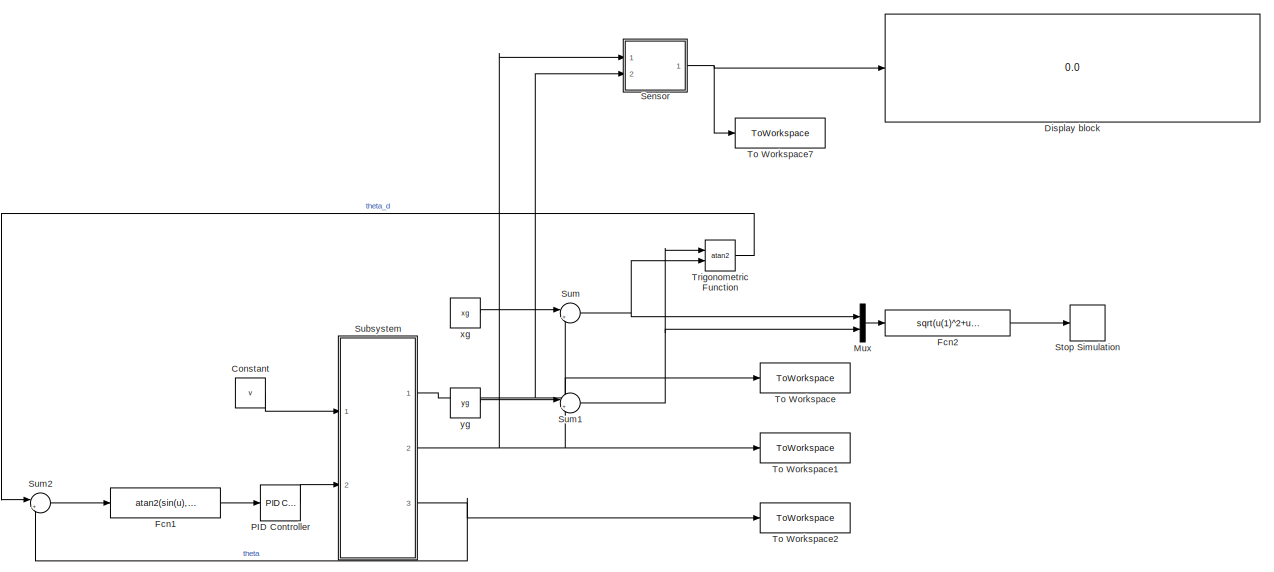
[diagram: root canvas - part 1/2, top center region]
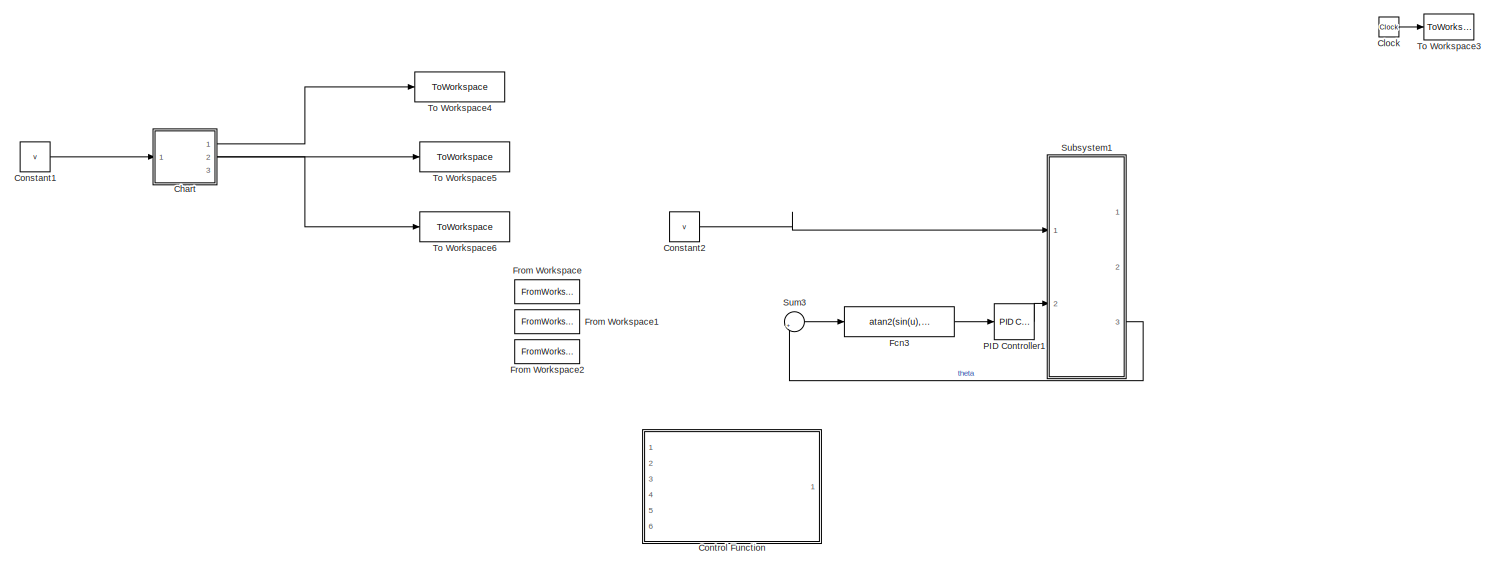
[diagram: root canvas - part 2/2, full width, bottom band]
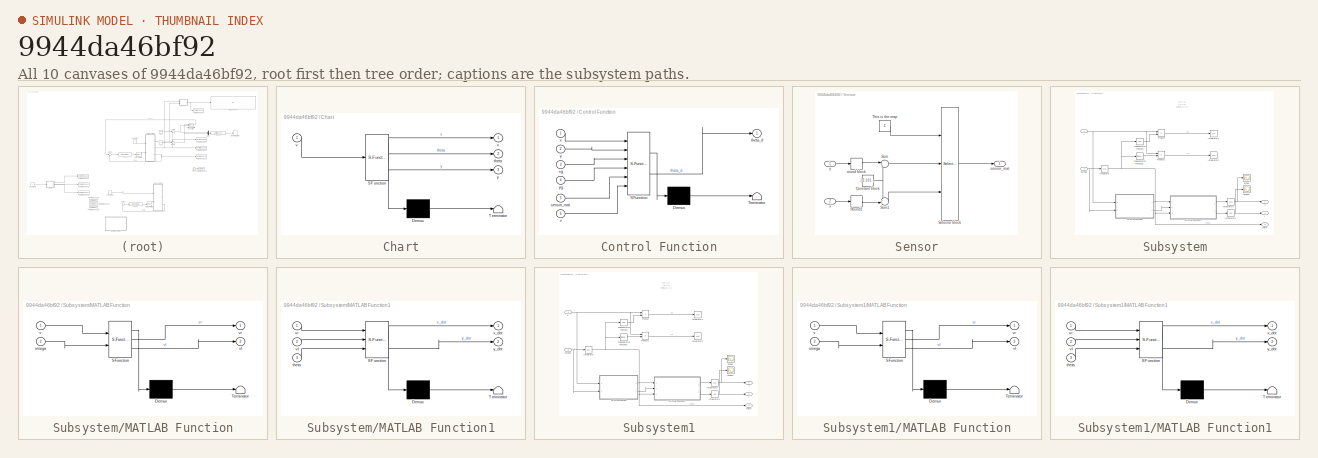
[diagram: thumbnail index - all 10 canvases of the model, root first then tree order]
MODEL slx_9944da46bf92
KIND model
CONFIG AbsTol = auto
CONFIG EnableMultiTasking = off
CONFIG FixedStep = auto
CONFIG MaxStep = auto
CONFIG MinStep = auto
CONFIG RelTol = 1e-3
CONFIG SampleTimeConstraint = Unconstrained
CONFIG SolverName = VariableStepAuto
CONFIG StartTime = 0.0
CONFIG StopTime = 10.0
BLOCK [SubSystem] Chart
  Commented = on
  ErrorFcn = Stateflow.Translate.translate
  PermitHierarchicalResolution = ExplicitOnly
  PortSchema = {"entries":[{"content":{"sides":[{"content":{"connectorIds":["In1"]},"type":"ConnectorPlacement.EquallySpacedRectSide","uuid":"6b970acd-0e57-48c6-b6e7-bbe5ce4c4b2d"},{"content":{"connectorIds":["Out1","Out3","Out2"],"side":"RIGHT"},"type":"ConnectorPlacement.EquallySpacedRectSide","uuid":"a94f6154-f886-4909-b274-137e45e3c008"},{"content":{"connectorIds":[],"side":"TOP"},"type":"ConnectorPlacement....<+254ch>
  Ports = [1, 3]
  RequestExecContextInheritance = off
  SFBlockType = Chart
  TreatAsAtomicUnit = on
BLOCK [Demux] Chart/ Demux 
  Outputs = 1
  Ports = [1, 1]
BLOCK [S-Function] Chart/ SFunction 
  EnableBusSupport = on
  FunctionName = sf_sfun
  PortCounts = [1 4]
  Ports = [1, 4]
  SFcnIsStateOwnerBlock = off
  SFunctionDeploymentMode = off
  Tag = Stateflow S-Function 3
BLOCK [Terminator] Chart/ Terminator 
BLOCK [Outport] Chart/theta
  Port = 2
BLOCK [Inport] Chart/v
BLOCK [Outport] Chart/x
BLOCK [Outport] Chart/y
  Port = 3
BLOCK [Clock] Clock
BLOCK [Constant] Constant
  Value = v
BLOCK [Constant] Constant1
  Commented = on
  Value = v
BLOCK [Constant] Constant2
  Value = v
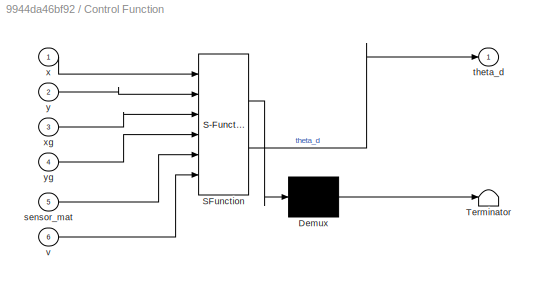
BLOCK [SubSystem] Control Function
  ErrorFcn = Stateflow.Translate.translate
  PermitHierarchicalResolution = ExplicitOnly
  Ports = [6, 1]
  RequestExecContextInheritance = off
  SFBlockType = MATLAB Function
  TreatAsAtomicUnit = on
BLOCK [Demux] Control Function/ Demux 
  Outputs = 1
  Ports = [1, 1]
BLOCK [S-Function] Control Function/ SFunction 
  EnableBusSupport = off
  FunctionName = sf_sfun
  PortCounts = [6 2]
  Ports = [6, 2]
  SFcnIsStateOwnerBlock = off
  SFunctionDeploymentMode = off
  Tag = Stateflow S-Function 6
BLOCK [Terminator] Control Function/ Terminator 
BLOCK [Inport] Control Function/sensor_mat
  Port = 5
BLOCK [Outport] Control Function/theta_d
BLOCK [Inport] Control Function/v
  Port = 6
BLOCK [Inport] Control Function/x
BLOCK [Inport] Control Function/xg
  Port = 3
BLOCK [Inport] Control Function/y
  Port = 2
BLOCK [Inport] Control Function/yg
  Port = 4
BLOCK [Display] Display block
  Decimation = 1
  Ports = [1]
BLOCK [Fcn] Fcn1
  Expr = atan2(sin(u),cos(u))
BLOCK [Fcn] Fcn2
  Expr = sqrt(u(1)^2+u(2)^2)<tol
BLOCK [Fcn] Fcn3
  Expr = atan2(sin(u),cos(u))
BLOCK [FromWorkspace] From Workspace
  VariableName = out.xpos
BLOCK [FromWorkspace] From Workspace1
  VariableName = out.ypos
BLOCK [FromWorkspace] From Workspace2
  VariableName = out.sensor_mat
BLOCK [Mux] Mux
  DisplayOption = bar
  Inputs = 2
  Ports = [2, 1]
BLOCK [Reference] PID Controller  REF=pid_lib/PID Controller
  Ports = [1, 1]
  SourceBlock = pid_lib/PID Controller
  SourceProductBaseCode = SL
  SourceType = PID 1dof
BLOCK [Reference] PID Controller1  REF=pid_lib/PID Controller
  Ports = [1, 1]
  SourceBlock = pid_lib/PID Controller
  SourceProductBaseCode = SL
  SourceType = PID 1dof
BLOCK [SubSystem] Sensor
  Ports = [2, 1]
  RequestExecContextInheritance = off
BLOCK [Constant] Sensor/Constant block
  Value = [-2 -1 0 1 2]
BLOCK [Rounding] Sensor/Round1
  Operator = round
BLOCK [Selector] Sensor/Selector block
  IndexOptions = Index vector (port),Index vector (port)
  Indices = [1 3],1
  InputPortWidth = 3
  NumberOfDimensions = 2
  OutputSizes = 1,1
  Ports = [3, 1]
BLOCK [Sum] Sensor/Sum
  Inputs = |+-
  OutDataTypeStr = int32
  Ports = [2, 1]
  RndMeth = Round
BLOCK [Sum] Sensor/Sum1
  Inputs = ++|
  OutDataTypeStr = int32
  Ports = [2, 1]
  RndMeth = Round
BLOCK [Constant] Sensor/This is the map
  Value = Z
  VectorParams1D = off
BLOCK [Rounding] Sensor/round block
  Operator = round
BLOCK [Outport] Sensor/sensor_mat
BLOCK [Inport] Sensor/x
  Port = 2
BLOCK [Inport] Sensor/y
BLOCK [Stop] Stop Simulation
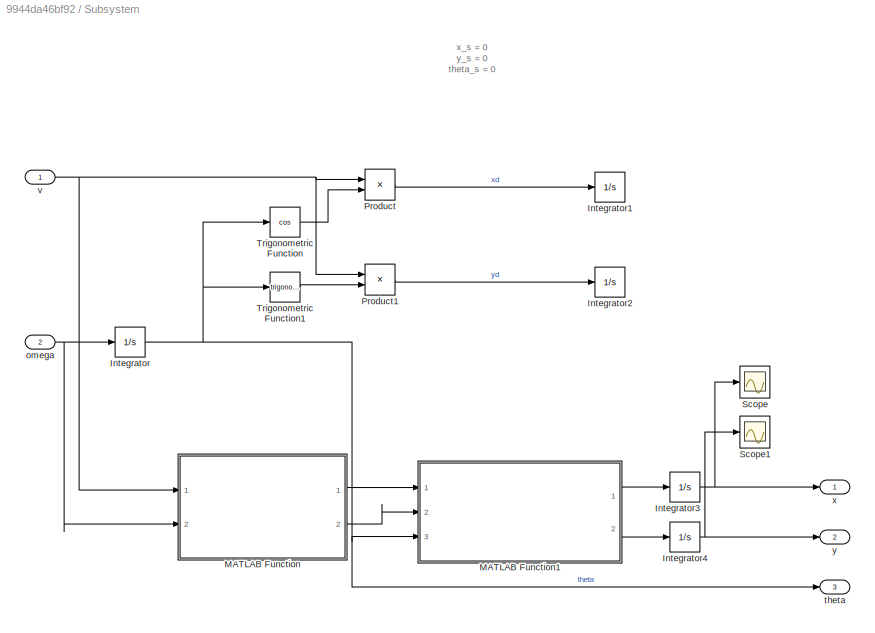
BLOCK [SubSystem] Subsystem
  Ports = [2, 3]
  RequestExecContextInheritance = off
BLOCK [Integrator] Subsystem/Integrator
  InitialCondition = theta0
  Ports = [1, 1]
BLOCK [Integrator] Subsystem/Integrator1
  InitialCondition = x0
  Ports = [1, 1]
BLOCK [Integrator] Subsystem/Integrator2
  InitialCondition = y0
  Ports = [1, 1]
BLOCK [Integrator] Subsystem/Integrator3
  InitialCondition = x0
  Ports = [1, 1]
BLOCK [Integrator] Subsystem/Integrator4
  InitialCondition = y0
  Ports = [1, 1]
BLOCK [SubSystem] Subsystem/MATLAB Function
  ErrorFcn = Stateflow.Translate.translate
  PermitHierarchicalResolution = ExplicitOnly
  Ports = [2, 2]
  RequestExecContextInheritance = off
  SFBlockType = MATLAB Function
  TreatAsAtomicUnit = on
BLOCK [Demux] Subsystem/MATLAB Function/ Demux 
  Outputs = 1
  Ports = [1, 1]
BLOCK [S-Function] Subsystem/MATLAB Function/ SFunction 
  EnableBusSupport = on
  FunctionName = sf_sfun
  PortCounts = [2 3]
  Ports = [2, 3]
  SFcnIsStateOwnerBlock = off
  SFunctionDeploymentMode = off
  Tag = Stateflow S-Function 2
BLOCK [Terminator] Subsystem/MATLAB Function/ Terminator 
BLOCK [Inport] Subsystem/MATLAB Function/omega
  Port = 2
BLOCK [Inport] Subsystem/MATLAB Function/v
BLOCK [Outport] Subsystem/MATLAB Function/vl
  Port = 2
BLOCK [Outport] Subsystem/MATLAB Function/vr
BLOCK [SubSystem] Subsystem/MATLAB Function1
  ErrorFcn = Stateflow.Translate.translate
  PermitHierarchicalResolution = ExplicitOnly
  Ports = [3, 2]
  RequestExecContextInheritance = off
  SFBlockType = MATLAB Function
  TreatAsAtomicUnit = on
BLOCK [Demux] Subsystem/MATLAB Function1/ Demux 
  Outputs = 1
  Ports = [1, 1]
BLOCK [S-Function] Subsystem/MATLAB Function1/ SFunction 
  EnableBusSupport = on
  FunctionName = sf_sfun
  PortCounts = [3 3]
  Ports = [3, 3]
  SFcnIsStateOwnerBlock = off
  SFunctionDeploymentMode = off
  Tag = Stateflow S-Function 1
BLOCK [Terminator] Subsystem/MATLAB Function1/ Terminator 
BLOCK [Inport] Subsystem/MATLAB Function1/theta
  Port = 3
BLOCK [Inport] Subsystem/MATLAB Function1/vl
  Port = 2
BLOCK [Inport] Subsystem/MATLAB Function1/vr
BLOCK [Outport] Subsystem/MATLAB Function1/x_dot
BLOCK [Outport] Subsystem/MATLAB Function1/y_dot
  Port = 2
BLOCK [Product] Subsystem/Product
  Ports = [2, 1]
BLOCK [Product] Subsystem/Product1
  Ports = [2, 1]
BLOCK [Scope] Subsystem/Scope
  Floating = off
  NumInputPorts = 1
  Ports = [1]
  ScopeSpecificationString = Simulink.scopes.TimeScopeBlockCfg('CurrentConfiguration', extmgr.ConfigurationSet(extmgr.Configuration('Core','General UI',true),extmgr.Configuration('Core','Source UI',true),extmgr.Configuration('Sources','WiredSimulink',true,'DataLoggingVariableName','ScopeData2'),extmgr.Configuration('Visuals','Time Domain',true,'SerializedDisplays',{struct('MinYLimReal','3.82573','MaxYLimReal','15.56847','YLab...<+1372ch>
BLOCK [Scope] Subsystem/Scope1
  Floating = off
  NumInputPorts = 1
  Ports = [1]
  ScopeSpecificationString = Simulink.scopes.TimeScopeBlockCfg('CurrentConfiguration', extmgr.ConfigurationSet(extmgr.Configuration('Core','General UI',true),extmgr.Configuration('Core','Source UI',true),extmgr.Configuration('Sources','WiredSimulink',true,'DataLoggingVariableName','ScopeData3'),extmgr.Configuration('Visuals','Time Domain',true,'SerializedDisplays',{struct('MinYLimReal','10.57265','MaxYLimReal','14.84619','YLa...<+1410ch>
BLOCK [Trigonometry] Subsystem/Trigonometric Function
  Operator = cos
  Ports = [1, 1]
BLOCK [Trigonometry] Subsystem/Trigonometric Function1
  Ports = [1, 1]
BLOCK [Inport] Subsystem/omega
  Port = 2
BLOCK [Outport] Subsystem/theta
  Port = 3
BLOCK [Inport] Subsystem/v
BLOCK [Outport] Subsystem/x
BLOCK [Outport] Subsystem/y
  Port = 2
BLOCK [SubSystem] Subsystem1
  Ports = [2, 3]
  RequestExecContextInheritance = off
BLOCK [Integrator] Subsystem1/Integrator
  InitialCondition = theta0
  Ports = [1, 1]
BLOCK [Integrator] Subsystem1/Integrator1
  InitialCondition = x0
  Ports = [1, 1]
BLOCK [Integrator] Subsystem1/Integrator2
  InitialCondition = y0
  Ports = [1, 1]
BLOCK [Integrator] Subsystem1/Integrator3
  InitialCondition = x0
  Ports = [1, 1]
BLOCK [Integrator] Subsystem1/Integrator4
  InitialCondition = y0
  Ports = [1, 1]
BLOCK [SubSystem] Subsystem1/MATLAB Function
  ErrorFcn = Stateflow.Translate.translate
  PermitHierarchicalResolution = ExplicitOnly
  Ports = [2, 2]
  RequestExecContextInheritance = off
  SFBlockType = MATLAB Function
  TreatAsAtomicUnit = on
BLOCK [Demux] Subsystem1/MATLAB Function/ Demux 
  Outputs = 1
  Ports = [1, 1]
BLOCK [S-Function] Subsystem1/MATLAB Function/ SFunction 
  EnableBusSupport = on
  FunctionName = sf_sfun
  PortCounts = [2 3]
  Ports = [2, 3]
  SFcnIsStateOwnerBlock = off
  SFunctionDeploymentMode = off
  Tag = Stateflow S-Function 4
BLOCK [Terminator] Subsystem1/MATLAB Function/ Terminator 
BLOCK [Inport] Subsystem1/MATLAB Function/omega
  Port = 2
BLOCK [Inport] Subsystem1/MATLAB Function/v
BLOCK [Outport] Subsystem1/MATLAB Function/vl
  Port = 2
BLOCK [Outport] Subsystem1/MATLAB Function/vr
BLOCK [SubSystem] Subsystem1/MATLAB Function1
  ErrorFcn = Stateflow.Translate.translate
  PermitHierarchicalResolution = ExplicitOnly
  Ports = [3, 2]
  RequestExecContextInheritance = off
  SFBlockType = MATLAB Function
  TreatAsAtomicUnit = on
BLOCK [Demux] Subsystem1/MATLAB Function1/ Demux 
  Outputs = 1
  Ports = [1, 1]
BLOCK [S-Function] Subsystem1/MATLAB Function1/ SFunction 
  EnableBusSupport = on
  FunctionName = sf_sfun
  PortCounts = [3 3]
  Ports = [3, 3]
  SFcnIsStateOwnerBlock = off
  SFunctionDeploymentMode = off
  Tag = Stateflow S-Function 5
BLOCK [Terminator] Subsystem1/MATLAB Function1/ Terminator 
BLOCK [Inport] Subsystem1/MATLAB Function1/theta
  Port = 3
BLOCK [Inport] Subsystem1/MATLAB Function1/vl
  Port = 2
BLOCK [Inport] Subsystem1/MATLAB Function1/vr
BLOCK [Outport] Subsystem1/MATLAB Function1/x_dot
BLOCK [Outport] Subsystem1/MATLAB Function1/y_dot
  Port = 2
BLOCK [Product] Subsystem1/Product
  Ports = [2, 1]
BLOCK [Product] Subsystem1/Product1
  Ports = [2, 1]
BLOCK [Scope] Subsystem1/Scope
  Floating = off
  NumInputPorts = 1
  Ports = [1]
  ScopeSpecificationString = Simulink.scopes.TimeScopeBlockCfg('CurrentConfiguration', extmgr.ConfigurationSet(extmgr.Configuration('Core','General UI',true),extmgr.Configuration('Core','Source UI',true),extmgr.Configuration('Sources','WiredSimulink',true,'DataLoggingVariableName','ScopeData2'),extmgr.Configuration('Visuals','Time Domain',true,'SerializedDisplays',{struct('MinYLimReal','2.06604','MaxYLimReal','31.40561','YLab...<+1372ch>
BLOCK [Scope] Subsystem1/Scope1
  Floating = off
  NumInputPorts = 1
  Ports = [1]
  ScopeSpecificationString = Simulink.scopes.TimeScopeBlockCfg('CurrentConfiguration', extmgr.ConfigurationSet(extmgr.Configuration('Core','General UI',true),extmgr.Configuration('Core','Source UI',true),extmgr.Configuration('Sources','WiredSimulink',true,'DataLoggingVariableName','ScopeData3'),extmgr.Configuration('Visuals','Time Domain',true,'SerializedDisplays',{struct('MinYLimReal','9.92523','MaxYLimReal','20.67291','YLab...<+1406ch>
BLOCK [Trigonometry] Subsystem1/Trigonometric Function
  Operator = cos
  Ports = [1, 1]
BLOCK [Trigonometry] Subsystem1/Trigonometric Function1
  Ports = [1, 1]
BLOCK [Inport] Subsystem1/omega
  Port = 2
BLOCK [Outport] Subsystem1/theta
  Port = 3
BLOCK [Inport] Subsystem1/v
BLOCK [Outport] Subsystem1/x
BLOCK [Outport] Subsystem1/y
  Port = 2
BLOCK [Sum] Sum
  Inputs = |+-
  Ports = [2, 1]
BLOCK [Sum] Sum1
  Inputs = |+-
  Ports = [2, 1]
BLOCK [Sum] Sum2
  Inputs = |+-
  Ports = [2, 1]
BLOCK [Sum] Sum3
  Inputs = |+-
  Ports = [2, 1]
BLOCK [ToWorkspace] To Workspace
  FixptAsFi = on
  MaxDataPoints = inf
  Ports = [1]
  SampleTime = -1
  VariableName = xpos
BLOCK [ToWorkspace] To Workspace1
  FixptAsFi = on
  MaxDataPoints = inf
  Ports = [1]
  SampleTime = -1
  VariableName = ypos
BLOCK [ToWorkspace] To Workspace2
  FixptAsFi = on
  MaxDataPoints = inf
  Ports = [1]
  SampleTime = -1
  VariableName = theta
BLOCK [ToWorkspace] To Workspace3
  FixptAsFi = on
  MaxDataPoints = inf
  Ports = [1]
  SampleTime = -1
  Save2DSignal = 2-D array (concatenate along first dimension)
  VariableName = t
BLOCK [ToWorkspace] To Workspace4
  Commented = on
  FixptAsFi = on
  MaxDataPoints = inf
  Ports = [1]
  SampleTime = -1
  VariableName = xpos1
BLOCK [ToWorkspace] To Workspace5
  Commented = on
  FixptAsFi = on
  MaxDataPoints = inf
  Ports = [1]
  SampleTime = -1
  VariableName = ypos1
BLOCK [ToWorkspace] To Workspace6
  Commented = on
  FixptAsFi = on
  MaxDataPoints = inf
  Ports = [1]
  SampleTime = -1
  VariableName = theta1
BLOCK [ToWorkspace] To Workspace7
  FixptAsFi = on
  MaxDataPoints = inf
  Ports = [1]
  SampleTime = -1
  SaveFormat = Timeseries
  VariableName = sensor_mat
BLOCK [Trigonometry] Trigonometric Function
  Operator = atan2
  Ports = [2, 1]
BLOCK [Constant] xg
  Value = xg
BLOCK [Constant] yg
  Value = yg
ANNOTATION Subsystem: x_s = 0 y_s = 0 theta_s = 0
ANNOTATION Subsystem1: x_s = 0 y_s = 0 theta_s = 0
LINE Chart:1 -> To Workspace4:1
LINE Chart:2 -> To Workspace6:1
LINE Chart:3 -> To Workspace5:1
LINE Clock:1 -> To Workspace3:1
LINE Constant1:1 -> Chart:1
LINE Constant2:1 -> Subsystem1:1
LINE Constant:1 -> Subsystem:1
LINE Fcn1:1 -> PID Controller:1
LINE Fcn2:1 -> Stop Simulation:1
LINE Fcn3:1 -> PID Controller1:1
LINE Mux:1 -> Fcn2:1
LINE PID Controller1:1 -> Subsystem1:2
LINE PID Controller:1 -> Subsystem:2
NET Sensor/Constant block:1 -> Sensor/Sum1:1, Sensor/Sum:2
LINE Sensor/Round1:1 -> Sensor/Sum1:2
LINE Sensor/Selector block:1 -> Sensor/sensor_mat:1
LINE Sensor/Sum1:1 -> Sensor/Selector block:3
LINE Sensor/Sum:1 -> Sensor/Selector block:2
LINE Sensor/This is the map:1 -> Sensor/Selector block:1
LINE Sensor/round block:1 -> Sensor/Sum:1
LINE Sensor/x:1 -> Sensor/Round1:1
LINE Sensor/y:1 -> Sensor/round block:1
NET Sensor:1 -> Display block:1, To Workspace7:1
NET Subsystem/Integrator3:1 -> Subsystem/Scope:1, Subsystem/x:1
NET Subsystem/Integrator4:1 -> Subsystem/Scope1:1, Subsystem/y:1
NET Subsystem/Integrator:1 -> Subsystem/MATLAB Function1:3, Subsystem/Trigonometric Function1:1, Subsystem/Trigonometric Function:1, Subsystem/theta:1
LINE Subsystem/MATLAB Function1:1 -> Subsystem/Integrator3:1
LINE Subsystem/MATLAB Function1:2 -> Subsystem/Integrator4:1
LINE Subsystem/MATLAB Function:1 -> Subsystem/MATLAB Function1:1
LINE Subsystem/MATLAB Function:2 -> Subsystem/MATLAB Function1:2
LINE Subsystem/Product1:1 -> Subsystem/Integrator2:1
LINE Subsystem/Product:1 -> Subsystem/Integrator1:1
LINE Subsystem/Trigonometric Function1:1 -> Subsystem/Product1:2
LINE Subsystem/Trigonometric Function:1 -> Subsystem/Product:2
NET Subsystem/omega:1 -> Subsystem/Integrator:1, Subsystem/MATLAB Function:2
NET Subsystem/v:1 -> Subsystem/MATLAB Function:1, Subsystem/Product1:1, Subsystem/Product:1
NET Subsystem1/Integrator3:1 -> Subsystem1/Scope:1, Subsystem1/x:1
NET Subsystem1/Integrator4:1 -> Subsystem1/Scope1:1, Subsystem1/y:1
NET Subsystem1/Integrator:1 -> Subsystem1/MATLAB Function1:3, Subsystem1/Trigonometric Function1:1, Subsystem1/Trigonometric Function:1, Subsystem1/theta:1
LINE Subsystem1/MATLAB Function1:1 -> Subsystem1/Integrator3:1
LINE Subsystem1/MATLAB Function1:2 -> Subsystem1/Integrator4:1
LINE Subsystem1/MATLAB Function:1 -> Subsystem1/MATLAB Function1:1
LINE Subsystem1/MATLAB Function:2 -> Subsystem1/MATLAB Function1:2
LINE Subsystem1/Product1:1 -> Subsystem1/Integrator2:1
LINE Subsystem1/Product:1 -> Subsystem1/Integrator1:1
LINE Subsystem1/Trigonometric Function1:1 -> Subsystem1/Product1:2
LINE Subsystem1/Trigonometric Function:1 -> Subsystem1/Product:2
NET Subsystem1/omega:1 -> Subsystem1/Integrator:1, Subsystem1/MATLAB Function:2
NET Subsystem1/v:1 -> Subsystem1/MATLAB Function:1, Subsystem1/Product1:1, Subsystem1/Product:1
LINE Subsystem1:3 -> Sum3:2
NET Subsystem:1 -> Sensor:2, Sum:2, To Workspace:1
NET Subsystem:2 -> Sensor:1, Sum1:2, To Workspace1:1
NET Subsystem:3 -> Sum2:2, To Workspace2:1
NET Sum1:1 -> Mux:2, Trigonometric Function:1
LINE Sum2:1 -> Fcn1:1
LINE Sum3:1 -> Fcn3:1
NET Sum:1 -> Mux:1, Trigonometric Function:2
LINE Trigonometric Function:1 -> Sum2:1
LINE xg:1 -> Sum:1
LINE yg:1 -> Sum1:1
note: NET lines group one-source signal fan-out (src -> all destinations, sorted); 1:1 wires keep LINE
CHART Subsystem/MATLAB Function1 states=1 transitions=1
  STATE_LABEL 'eML_blk_kernel()'
  STATE_LABEL 'SCRIPT:\nfunction [x_dot,y_dot] = velocity_from_differential(vr,vl,theta)\n    r = 0.1;\n    l = 0.5;\n    x_dot = (r/2)*(vr+vl)*cos(theta);\n    y_dot = (r/2)*(vr+vl)*sin(theta);\n\n'
CHART Subsystem/MATLAB Function states=1 transitions=1
  STATE_LABEL 'eML_blk_kernel()'
  STATE_LABEL 'SCRIPT:\nfunction [vr,vl] = differential_from_theta(v,omega)\n    r = 0.1;\n    l = 0.5;\n    vr = (2*v+omega*l)/(2*r);\n    vl = (2*v-omega*l)/(2*r);\n     \n\n'
CHART Chart states=2 transitions=2
  STATE_LABEL 'GTG\n'
  STATE_LABEL 'GTG1\n'
CHART Subsystem1/MATLAB Function states=1 transitions=1
  STATE_LABEL 'eML_blk_kernel()'
  STATE_LABEL 'SCRIPT:\nfunction [vr,vl] = differential_from_theta(v,omega)\n    r = 0.1;\n    l = 0.5;\n    vr = (2*v+omega*l)/(2*r);\n    vl = (2*v-omega*l)/(2*r);\n     \n\n'
CHART Subsystem1/MATLAB Function1 states=1 transitions=1
  STATE_LABEL 'eML_blk_kernel()'
  STATE_LABEL 'SCRIPT:\nfunction [x_dot,y_dot] = velocity_from_differential(vr,vl,theta)\n    r = 0.1;\n    l = 0.5;\n    x_dot = (r/2)*(vr+vl)*cos(theta);\n    y_dot = (r/2)*(vr+vl)*sin(theta);\n\n'
CHART Control Function states=1 transitions=1
  STATE_LABEL 'eML_blk_kernel()'
  STATE_LABEL 'SCRIPT:\nfunction theta_d = control_function(x,y,xg,yg,sensor_mat,v)\n    \n    \n    x_gtg = xg-x;\n    y_gtg = yg-y;\n    x_ao = x-xg;\n    y_ao = y-yg;\n    beta = 1;\n    abs_e = sqrt(x_ao^2 + y_ao^2);\n    c = 1;\n    epsilon = 0.1\n    k_ao = (1/abs_e) * (c*(abs_e^2 + epsilon));\n    alfa = 1;\n    k_gtg = v*(1-e^((-alfa)*(xg-x)^2));\n    v_gtg = [x_gtg,y_gtg];\n    v_ao = [x_ao,y_ao];\n    R_c = rotx(-pi/2)...<+205ch>'
CHART  states=0 transitions=0
CHART  states=0 transitions=0
CHART  states=0 transitions=0
CHART  states=0 transitions=0
CHART  states=0 transitions=0
CHART  states=0 transitions=0
